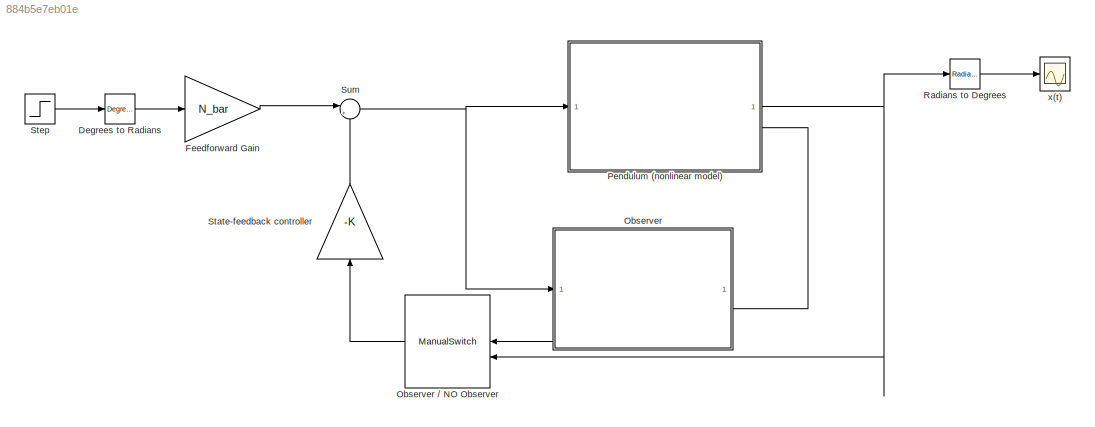
MODEL slx_884b5e7eb01e
KIND model
CONFIG AbsTol = auto
CONFIG EnableMultiTasking = off
CONFIG FixedStep = 0.01
CONFIG MaxStep = auto
CONFIG MinStep = auto
CONFIG RelTol = 1e-3
CONFIG SampleTimeConstraint = Unconstrained
CONFIG SolverName = ode3
CONFIG StartTime = 0.0
CONFIG StopTime = 10
BLOCK [Reference] Degrees to Radians  REF=simulink_extras/Transformations/Degrees to
Radians
  SourceBlock = simulink_extras/Transformations/Degrees to\nRadians
  SourceType = DegreesToRadians
BLOCK [Gain] Feedforward Gain
  Gain = N_bar
  Multiplication = Matrix(K*u) (u vector)
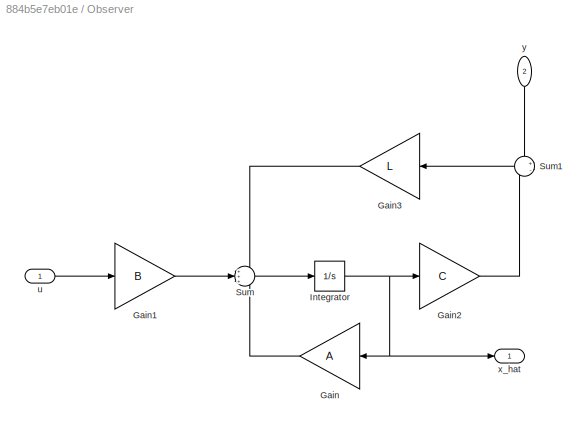
BLOCK [SubSystem] Observer
  NameLocation = top
  PortSchema = {"entries":[{"content":{"sides":[{"content":{"connectorIds":["In1","Out1"]},"type":"ConnectorPlacement.EquallySpacedRectSide","uuid":"e39c489f-7ce3-4515-bfb3-5978cf16689b"},{"content":{"connectorIds":["In2"],"side":"RIGHT"},"type":"ConnectorPlacement.EquallySpacedRectSide","uuid":"c323375b-3042-4327-9d10-0e78d49b9c28"},{"content":{"connectorIds":[],"side":"TOP"},"type":"ConnectorPlacement.EquallyS...<+390ch>
BLOCK [ManualSwitch] Observer // NO Observer
BLOCK [Gain] Observer/Gain
  Gain = A
  Multiplication = Matrix(K*u) (u vector)
BLOCK [Gain] Observer/Gain1
  Gain = B
  Multiplication = Matrix(K*u) (u vector)
BLOCK [Gain] Observer/Gain2
  Gain = C
  Multiplication = Matrix(K*u) (u vector)
BLOCK [Gain] Observer/Gain3
  Gain = L
  Multiplication = Matrix(K*u) (u vector)
BLOCK [Integrator] Observer/Integrator
  InitialCondition = zeros(2,1)
BLOCK [Sum] Observer/Sum
  Inputs = +++
BLOCK [Sum] Observer/Sum1
  Inputs = +-
BLOCK [Inport] Observer/u
BLOCK [Outport] Observer/x_hat
BLOCK [Inport] Observer/y
  NameLocation = left
  Port = 2
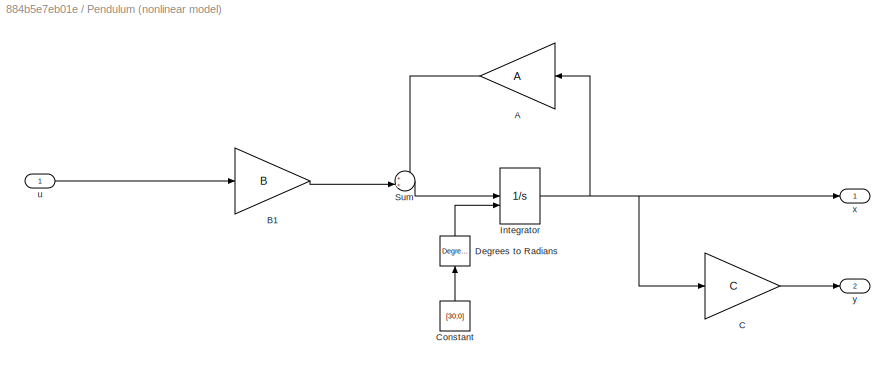
BLOCK [SubSystem] Pendulum (nonlinear model)
BLOCK [Gain] Pendulum (nonlinear model)/A
  Gain = A
  Multiplication = Matrix(K*u) (u vector)
BLOCK [Gain] Pendulum (nonlinear model)/B1
  Gain = B
  Multiplication = Matrix(K*u) (u vector)
BLOCK [Gain] Pendulum (nonlinear model)/C
  Gain = C
  Multiplication = Matrix(K*u) (u vector)
BLOCK [Constant] Pendulum (nonlinear model)/Constant
  NameLocation = right
  Value = [30;0]
  VectorParams1D = off
BLOCK [Reference] Pendulum (nonlinear model)/Degrees to Radians  REF=simulink_extras/Transformations/Degrees to
Radians
  NameLocation = right
  SourceBlock = simulink_extras/Transformations/Degrees to\nRadians
  SourceType = DegreesToRadians
BLOCK [Integrator] Pendulum (nonlinear model)/Integrator
  InitialCondition = [0.1;0]
  InitialConditionSource = external
BLOCK [Sum] Pendulum (nonlinear model)/Sum
  Inputs = ++|
BLOCK [Inport] Pendulum (nonlinear model)/u
BLOCK [Outport] Pendulum (nonlinear model)/x
BLOCK [Outport] Pendulum (nonlinear model)/y
  Port = 2
BLOCK [Reference] Radians to Degrees  REF=simulink_extras/Transformations/Radians
to Degrees
  SourceBlock = simulink_extras/Transformations/Radians\nto Degrees
  SourceType = RadiansToDegrees
BLOCK [Gain] State-feedback controller
  Gain = -K
  Multiplication = Matrix(K*u) (u vector)
  NameLocation = left
BLOCK [Step] Step
  After = 45
  SampleTime = 0
BLOCK [Sum] Sum
  Inputs = |++
BLOCK [Scope] x(t)
  Floating = off
  NumInputPorts = 1
  ScopeSpecificationString = Simulink.scopes.TimeScopeBlockCfg('CurrentConfiguration', extmgr.ConfigurationSet(extmgr.Configuration('Core','General UI',true),extmgr.Configuration('Core','Source UI',true),extmgr.Configuration('Sources','WiredSimulink',true,'DataLoggingVariableName','ScopeData1'),extmgr.Configuration('Visuals','Time Domain',true,'SerializedDisplays',{struct('MinYLimReal','-34.06106','MaxYLimReal','53.7844','YLa...<+1460ch>
LINE Degrees to Radians:1 -> Feedforward Gain:1
LINE Feedforward Gain:1 -> Sum:1
LINE Observer // NO Observer:1 -> State-feedback controller:1
LINE Observer/Gain1:1 -> Observer/Sum:2
LINE Observer/Gain2:1 -> Observer/Sum1:2
LINE Observer/Gain3:1 -> Observer/Sum:1
LINE Observer/Gain:1 -> Observer/Sum:3
NET Observer/Integrator:1 -> Observer/Gain2:1, Observer/Gain:1, Observer/x_hat:1
LINE Observer/Sum1:1 -> Observer/Gain3:1
LINE Observer/Sum:1 -> Observer/Integrator:1
LINE Observer/u:1 -> Observer/Gain1:1
LINE Observer/y:1 -> Observer/Sum1:1
LINE Observer:1 -> Observer // NO Observer:1
LINE Pendulum (nonlinear model)/A:1 -> Pendulum (nonlinear model)/Sum:1
LINE Pendulum (nonlinear model)/B1:1 -> Pendulum (nonlinear model)/Sum:2
LINE Pendulum (nonlinear model)/C:1 -> Pendulum (nonlinear model)/y:1
LINE Pendulum (nonlinear model)/Constant:1 -> Pendulum (nonlinear model)/Degrees to Radians:1
LINE Pendulum (nonlinear model)/Degrees to Radians:1 -> Pendulum (nonlinear model)/Integrator:2
NET Pendulum (nonlinear model)/Integrator:1 -> Pendulum (nonlinear model)/A:1, Pendulum (nonlinear model)/C:1, Pendulum (nonlinear model)/x:1
LINE Pendulum (nonlinear model)/Sum:1 -> Pendulum (nonlinear model)/Integrator:1
LINE Pendulum (nonlinear model)/u:1 -> Pendulum (nonlinear model)/B1:1
NET Pendulum (nonlinear model):1 -> Observer // NO Observer:2, Radians to Degrees:1
LINE Pendulum (nonlinear model):2 -> Observer:2
LINE Radians to Degrees:1 -> x(t):1
LINE State-feedback controller:1 -> Sum:2
LINE Step:1 -> Degrees to Radians:1
NET Sum:1 -> Observer:1, Pendulum (nonlinear model):1
note: NET lines group one-source signal fan-out (src -> all destinations, sorted); 1:1 wires keep LINE
